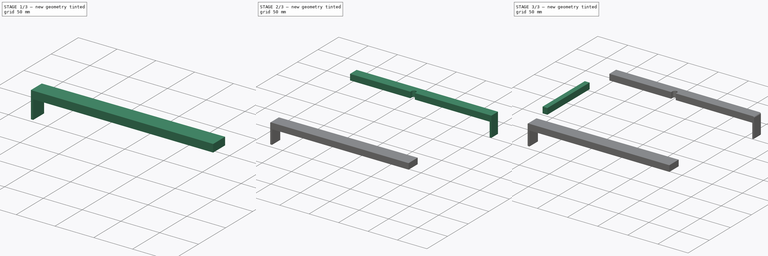
[diagram: build sequence overview — one tinted view per stage of 3, left to right]
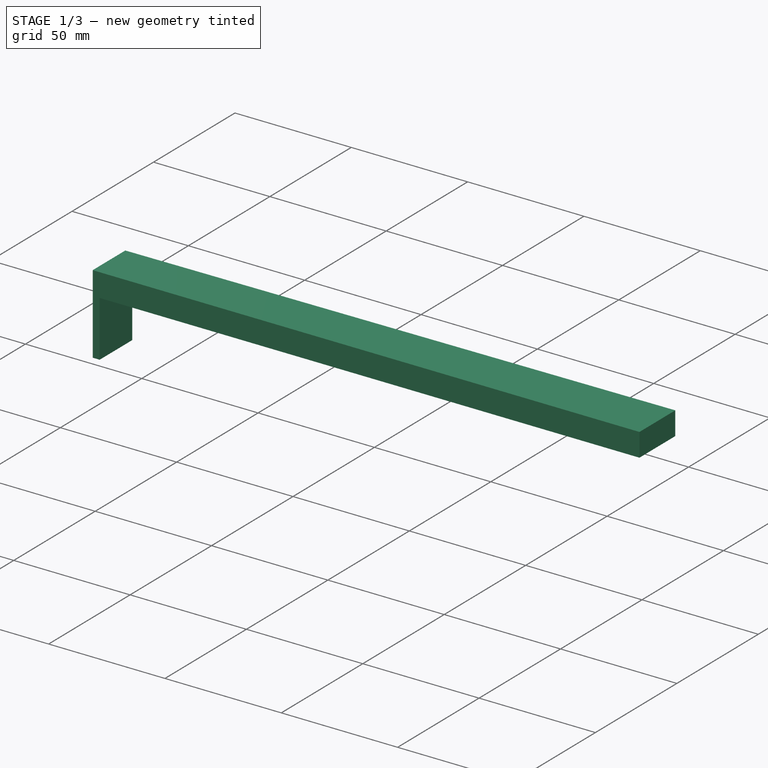
[diagram: stage 1 of 3 — iso view after this stage's code; geometry added in this stage tinted green]
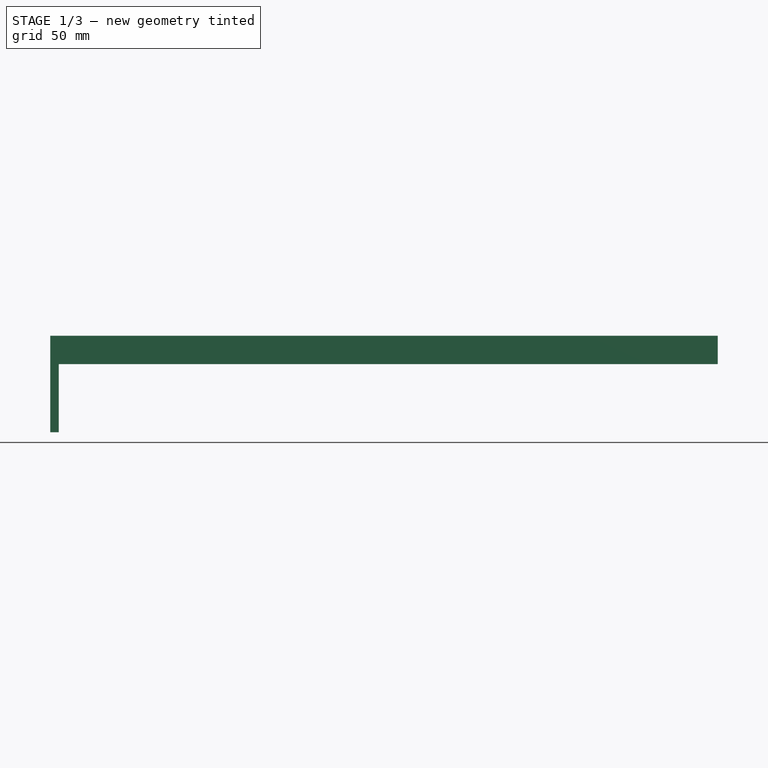
[diagram: stage 1 of 3 — front view after this stage's code; geometry added in this stage tinted green]
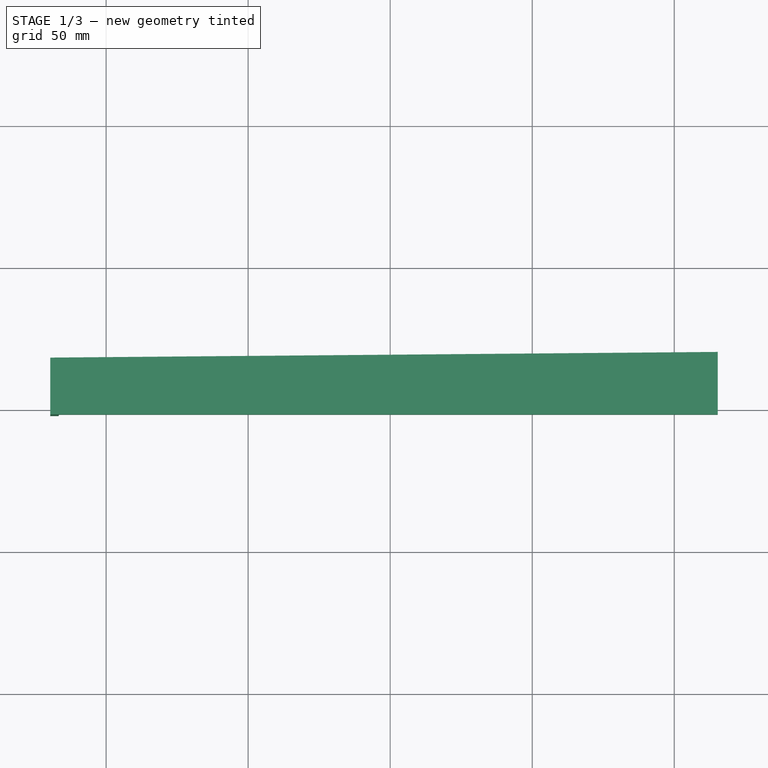
[diagram: stage 1 of 3 — top view after this stage's code; geometry added in this stage tinted green]
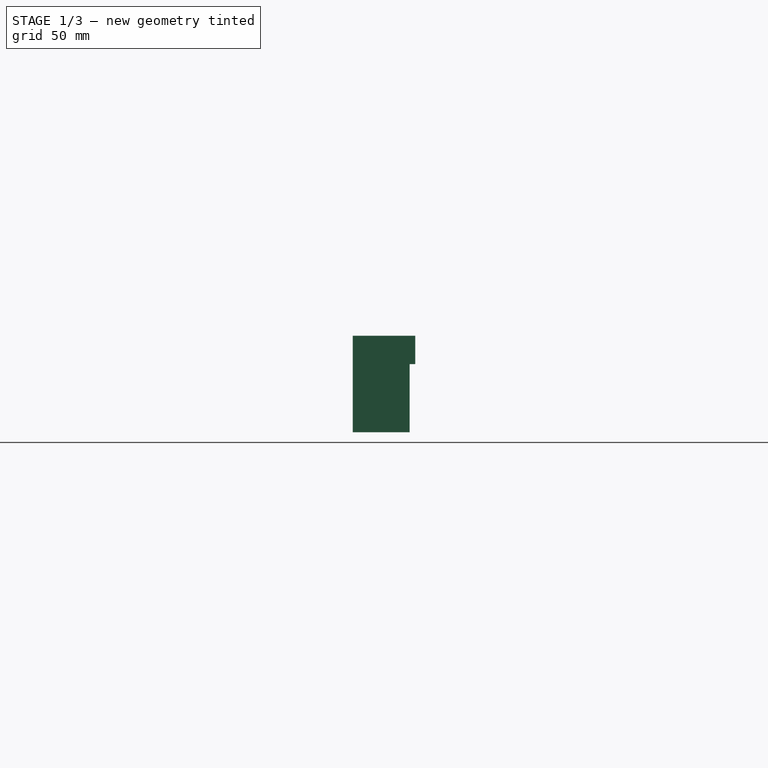
[diagram: stage 1 of 3 — right view after this stage's code; geometry added in this stage tinted green]
FCSTD DOCUMENT  (FreeCAD 0.20R29177 +426 (Git))
Label: 宜家书桌-美缝条
License: All rights reserved
LicenseURL: http://en.wikipedia.org/wiki/All_rights_reserved
objects: Sketcher::SketchObject×5, PartDesign::Pad×5, PartDesign::Body×3, App::Part×3, PartDesign::Fillet×2
note: 22 computed .brp shape members not serialized (recipe doc carries the construction recipe); baked Part::Feature solids carry a one-line shape summary decoded from their .brp

FEATURE [PartDesign::Body] Body
  Group = -> [Sketch,Pad,Sketch001,Pad001,Fillet]
  Origin = -> Origin001
  Tip = -> Fillet
FEATURE [App::Part] Part  label="右侧"
  Group = -> [Body]
  Origin = -> Origin
FEATURE [Sketcher::SketchObject] Sketch003
  FullyConstrained = true
  MapMode = 5
  Support = -> [XY_Plane005]
  sketch-geometry (4):
    g0: LineSegment StartX=-119.68 StartY=-182.01 StartZ=0 EndX=115.32 EndY=-180.01 EndZ=0
    g1: LineSegment StartX=115.32 StartY=-180.01 StartZ=0 EndX=115.32 EndY=-202.01 EndZ=0
    g2: LineSegment StartX=-119.68 StartY=-202.01 StartZ=0 EndX=-119.68 EndY=-182.01 EndZ=0
    g3: LineSegment StartX=-119.68 StartY=-202.01 StartZ=0 EndX=115.32 EndY=-202.01 EndZ=0
  constraints (12):
    c: Coincident(g0,g1)
    c: Coincident(g2,g0)
    c: Vertical(g2)
    c: Vertical(g1)
    c: DistanceY(g1,g1) = 22
    c: DistanceY(g2,g2) = 20
    c: Coincident(g3,g2)
    c: Coincident(g3,g1)
    c: Horizontal(g3)
    c: DistanceX(g3,g3) = 235
    c: DistanceX(g-2,g2) = -119.68
    c: DistanceY(g-1,g0) = -180.01
FEATURE [PartDesign::Pad] Pad003
  Direction = (0,0,1)
  Length = 10
  Length2 = 10
  Profile = -> Sketch003
  ReferenceAxis = -> Sketch003 [N_Axis]
  Type = 0
FEATURE [Sketcher::SketchObject] Sketch004
  ExternalGeometry = -> [Pad003]
  FullyConstrained = true
  MapMode = 5
  Placement = pos=(0,0,0) rot=(1,0,0;3.14159rad)
  Support = -> [Pad003]
  sketch-geometry (4):
    g0: LineSegment StartX=-119.68 StartY=202.01 StartZ=0 EndX=-116.68 EndY=202.01 EndZ=0
    g1: LineSegment StartX=-116.68 StartY=202.01 StartZ=0 EndX=-116.68 EndY=181.984 EndZ=0
    g2: LineSegment StartX=-116.68 StartY=181.984 StartZ=0 EndX=-119.68 EndY=182.01 EndZ=0
    g3: LineSegment StartX=-119.68 StartY=182.01 StartZ=0 EndX=-119.68 EndY=202.01 EndZ=0
  constraints (11):
    c: Horizontal(g0)
    c: Coincident(g0,g1)
    c: Vertical(g1)
    c: Coincident(g1,g2)
    c: Coincident(g2,g3)
    c: Coincident(g3,g0)
    c: Vertical(g3)
    c: PointOnObject(g1,g-5)
    c: Coincident(g2,g-5)
    c: PointOnObject(g0,g-3)
    c: DistanceX(g0,g0) = 3
FEATURE [PartDesign::Pad] Pad004
  BaseFeature = -> Pad003
  Direction = (0,0,-1)
  Length = 24
  Length2 = 10
  Profile = -> Sketch004
  ReferenceAxis = -> Sketch004 [N_Axis]
  Type = 0
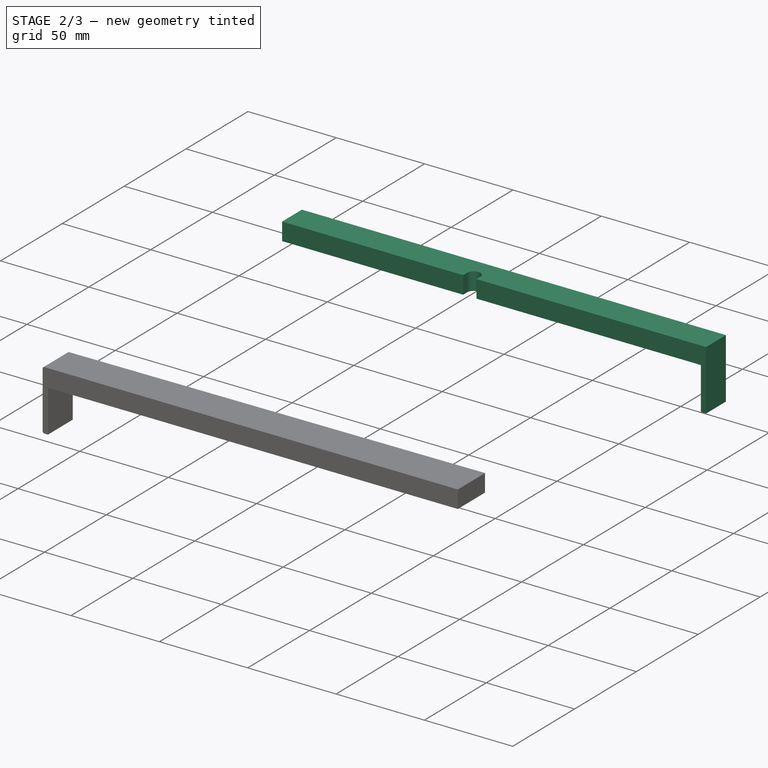
[diagram: stage 2 of 3 — iso view after this stage's code; geometry added in this stage tinted green]
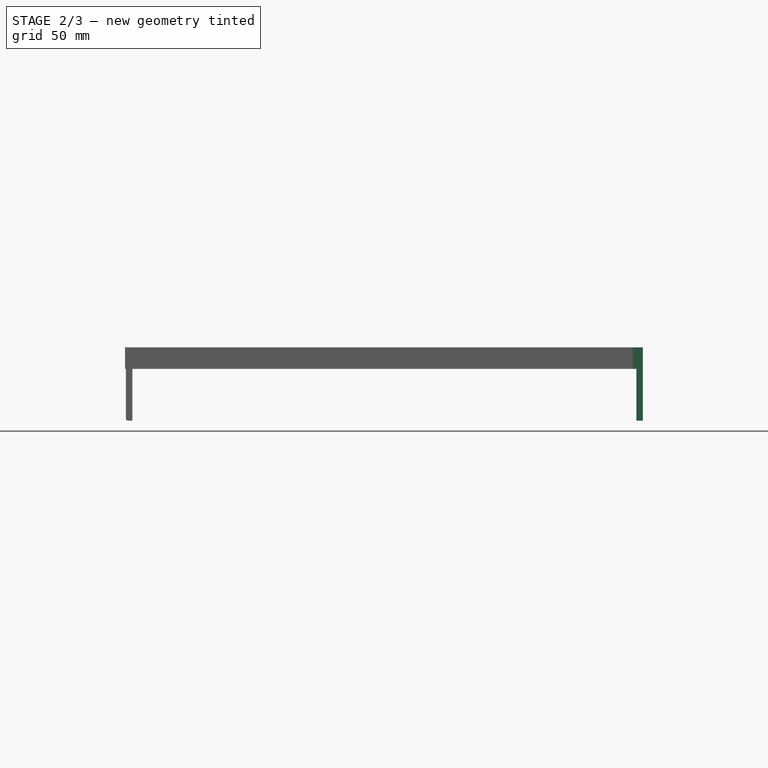
[diagram: stage 2 of 3 — front view after this stage's code; geometry added in this stage tinted green]
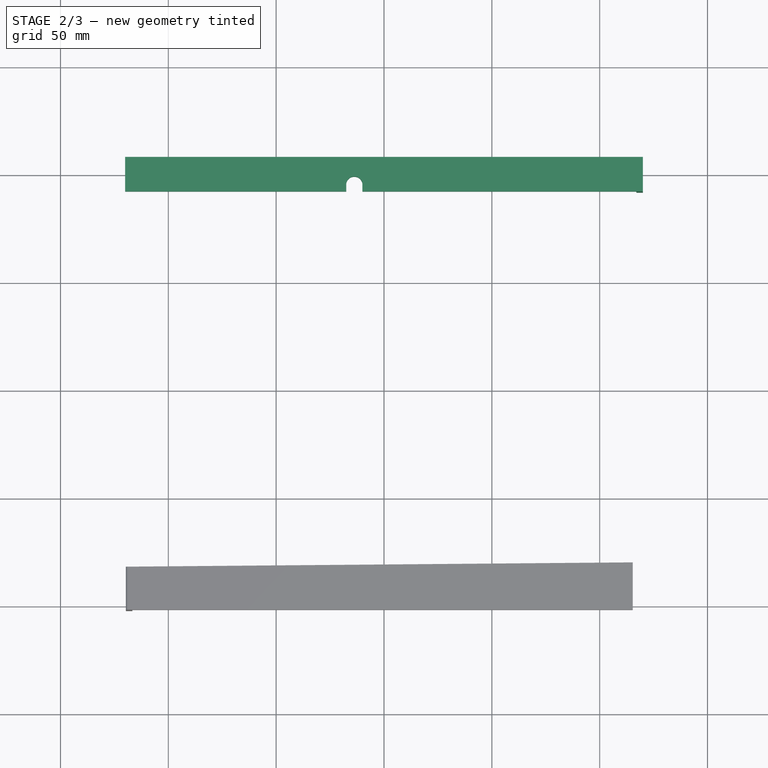
[diagram: stage 2 of 3 — top view after this stage's code; geometry added in this stage tinted green]
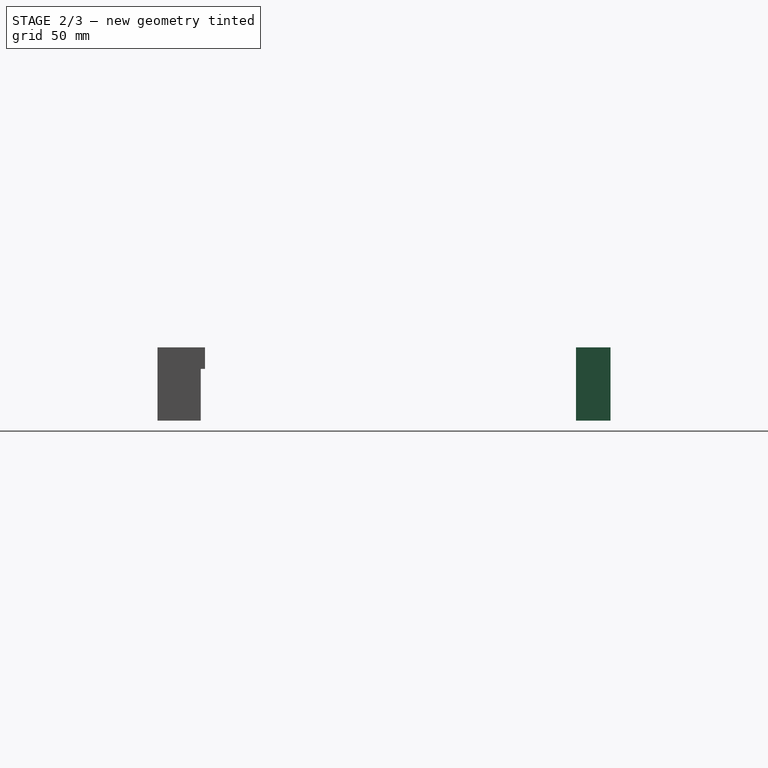
[diagram: stage 2 of 3 — right view after this stage's code; geometry added in this stage tinted green]
FEATURE [Sketcher::SketchObject] Sketch
  FullyConstrained = true
  MapMode = 5
  Support = -> [XY_Plane001]
  sketch-geometry (8):
    g0: LineSegment StartX=-120 StartY=8 StartZ=0 EndX=120 EndY=8 EndZ=0
    g1: LineSegment StartX=120 StartY=8 StartZ=0 EndX=120 EndY=-8 EndZ=0
    g2: LineSegment StartX=-120 StartY=-8 StartZ=0 EndX=-120 EndY=8 EndZ=0
    g3: LineSegment StartX=120 StartY=-8 StartZ=0 EndX=-10 EndY=-8 EndZ=0
    g4: LineSegment StartX=-120 StartY=-8 StartZ=0 EndX=-17.5 EndY=-8 EndZ=0
    g5: ArcOfCircle CenterX=-13.75 CenterY=-4.91441 CenterZ=0 NormalX=0 NormalY=0 NormalZ=1 AngleXU=0 Radius=3.8 StartAngle=0.1624 EndAngle=2.97919
    g6: LineSegment StartX=-17.5 StartY=-4.3 StartZ=0 EndX=-17.5 EndY=-8 EndZ=0
    g7: LineSegment StartX=-10 StartY=-4.3 StartZ=0 EndX=-10 EndY=-8 EndZ=0
  constraints (24):
    c: Coincident(g0,g1)
    c: Coincident(g2,g0)
    c: Horizontal(g0)
    c: Vertical(g1)
    c: Vertical(g2)
    c: Symmetric(g0,g1,g-1)
    c: DistanceX(g2,g1) = 240
    c: DistanceY(g2,g2) = 16
    c: Coincident(g3,g1)
    c: Horizontal(g3)
    c: Coincident(g4,g2)
    c: Horizontal(g4)
    c: DistanceX(g3,g3) = 130
    c: Horizontal(g4,g3)
    c: Horizontal(g5,g5)
    c: Coincident(g6,g5)
    c: Coincident(g6,g4)
    c: Vertical(g6)
    c: Coincident(g7,g5)
    c: Coincident(g7,g3)
    c: Vertical(g7)
    c: Radius(g5) = 3.8
    c: Distance(g4,g3) = 7.5
    c: DistanceY(g6,g6) = 3.7
FEATURE [PartDesign::Pad] Pad
  Direction = (0,0,1)
  Length = 10
  Length2 = 10
  Profile = -> Sketch
  ReferenceAxis = -> Sketch [N_Axis]
  Type = 0
FEATURE [Sketcher::SketchObject] Sketch001
  ExternalGeometry = -> [Sketch]
  FullyConstrained = true
  MapMode = 5
  Placement = pos=(0,0,0) rot=(1,0,0;3.14159rad)
  Support = -> [Pad]
  sketch-geometry (4):
    g0: LineSegment StartX=117 StartY=8 StartZ=0 EndX=120 EndY=8 EndZ=0
    g1: LineSegment StartX=120 StartY=8 StartZ=0 EndX=120 EndY=-8 EndZ=0
    g2: LineSegment StartX=120 StartY=-8 StartZ=0 EndX=117 EndY=-8 EndZ=0
    g3: LineSegment StartX=117 StartY=-8 StartZ=0 EndX=117 EndY=8 EndZ=0
  constraints (11):
    c: Coincident(g0,g1)
    c: Coincident(g1,g2)
    c: Coincident(g2,g3)
    c: Coincident(g3,g0)
    c: Horizontal(g0)
    c: Horizontal(g2)
    c: Vertical(g1)
    c: Vertical(g3)
    c: Coincident(g1,g-5)
    c: PointOnObject(g0,g-3)
    c: DistanceX(g0,g0) = 3
FEATURE [PartDesign::Pad] Pad001
  BaseFeature = -> Pad
  Direction = (0,0,-1)
  Length = 24
  Length2 = 10
  Profile = -> Sketch001
  ReferenceAxis = -> Sketch001 [N_Axis]
  Type = 0
FEATURE [PartDesign::Fillet] Fillet001
  Base = -> Pad004 [Edge8,Edge20]
  BaseFeature = -> Pad004
  Radius = 1
  SupportTransform = false
  UseAllEdges = false
FEATURE [PartDesign::Body] Body002
  Group = -> [Sketch003,Pad003,Sketch004,Pad004,Fillet001]
  Origin = -> Origin005
  Tip = -> Fillet001
FEATURE [App::Part] Part002  label="左侧"
  Group = -> [Body002]
  Origin = -> Origin004
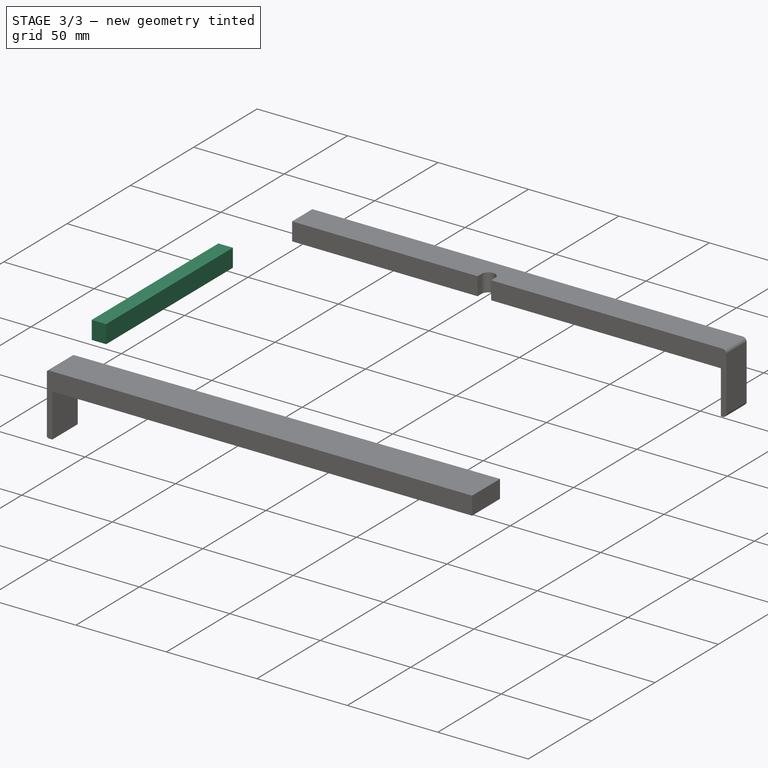
[diagram: stage 3 of 3 — iso view after this stage's code; geometry added in this stage tinted green]
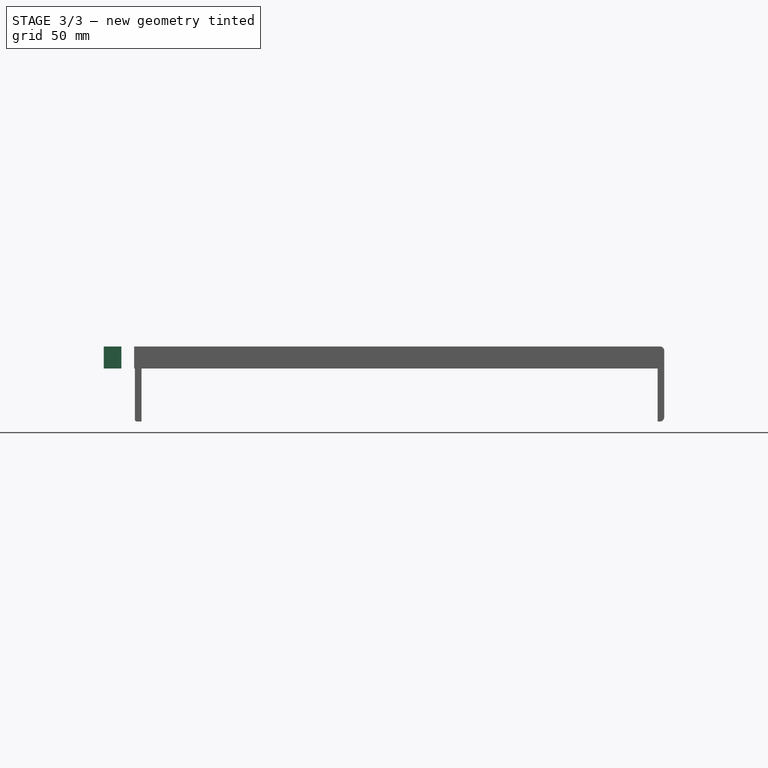
[diagram: stage 3 of 3 — front view after this stage's code; geometry added in this stage tinted green]
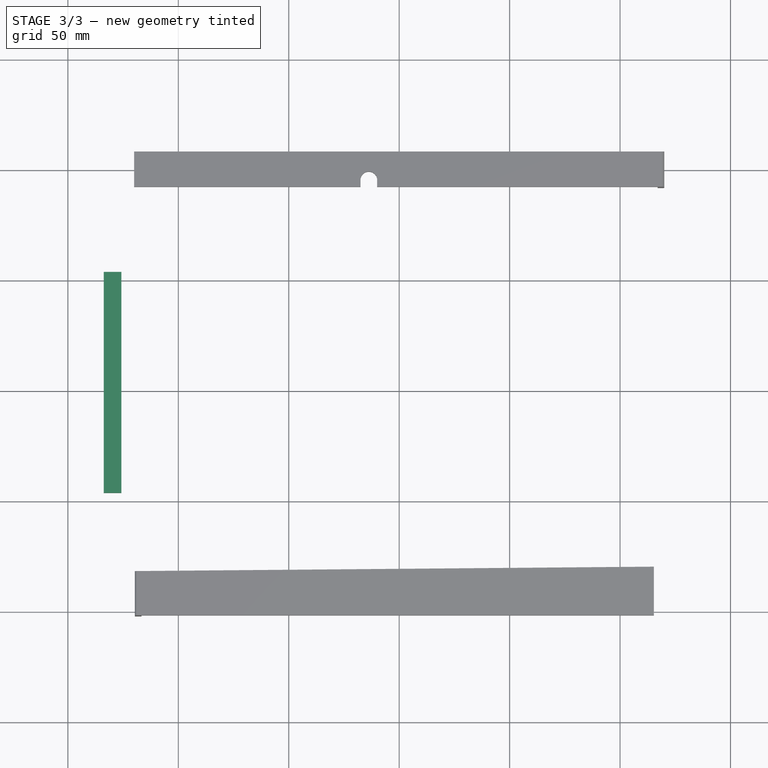
[diagram: stage 3 of 3 — top view after this stage's code; geometry added in this stage tinted green]
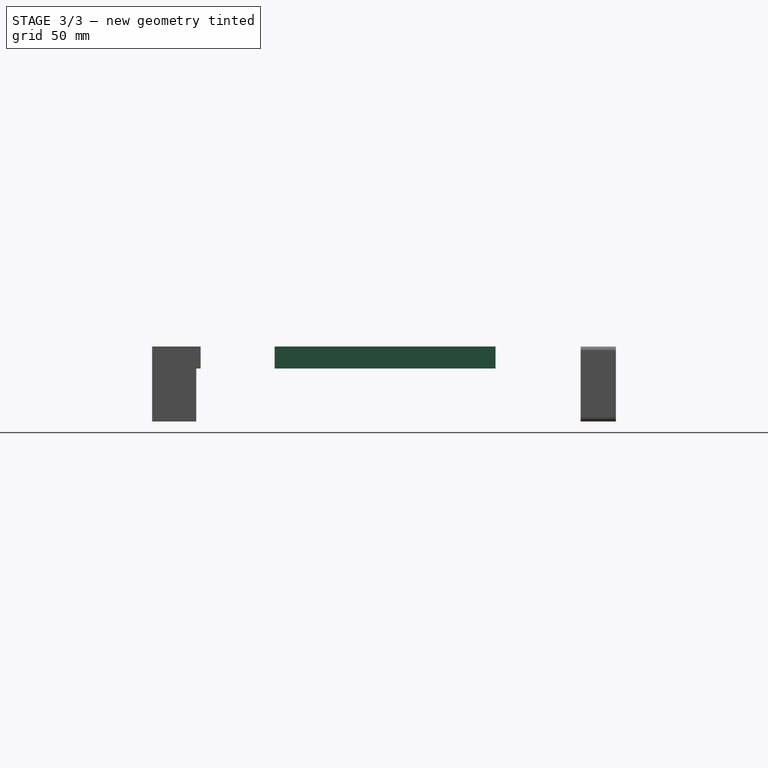
[diagram: stage 3 of 3 — right view after this stage's code; geometry added in this stage tinted green]
FEATURE [Sketcher::SketchObject] Sketch002
  FullyConstrained = false
  MapMode = 5
  Support = -> [XY_Plane003]
  sketch-geometry (4):
    g0: LineSegment StartX=-133.774 StartY=-46.5204 StartZ=0 EndX=-125.774 EndY=-46.5204 EndZ=0
    g1: LineSegment StartX=-125.774 StartY=-46.5204 StartZ=0 EndX=-125.774 EndY=-146.52 EndZ=0
    g2: LineSegment StartX=-125.774 StartY=-146.52 StartZ=0 EndX=-133.774 EndY=-146.52 EndZ=0
    g3: LineSegment StartX=-133.774 StartY=-146.52 StartZ=0 EndX=-133.774 EndY=-46.5204 EndZ=0
  constraints (10):
    c: Coincident(g0,g1)
    c: Coincident(g1,g2)
    c: Coincident(g2,g3)
    c: Coincident(g3,g0)
    c: Horizontal(g0)
    c: Horizontal(g2)
    c: Vertical(g1)
    c: Vertical(g3)
    c: DistanceX(g2,g2) = 8
    c: DistanceY(g1,g1) = 100
FEATURE [PartDesign::Pad] Pad002
  Direction = (0,0,1)
  Length = 10
  Length2 = 10
  Profile = -> Sketch002
  ReferenceAxis = -> Sketch002 [N_Axis]
  Type = 0
FEATURE [PartDesign::Body] Body001
  Group = -> [Sketch002,Pad002]
  Origin = -> Origin003
  Tip = -> Pad002
FEATURE [App::Part] Part001  label="前方"
  Group = -> [Body001]
  Origin = -> Origin002
FEATURE [PartDesign::Fillet] Fillet
  Base = -> Pad001 [Edge19,Edge35]
  BaseFeature = -> Pad001
  Radius = 2
  SupportTransform = false
  UseAllEdges = false
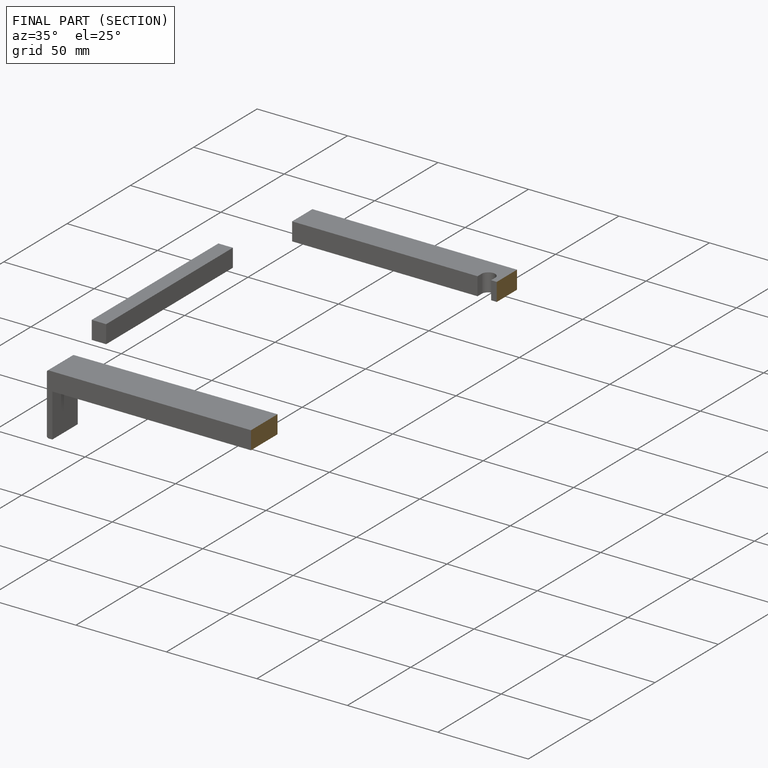
[diagram: finished part — half-section view (interior)]
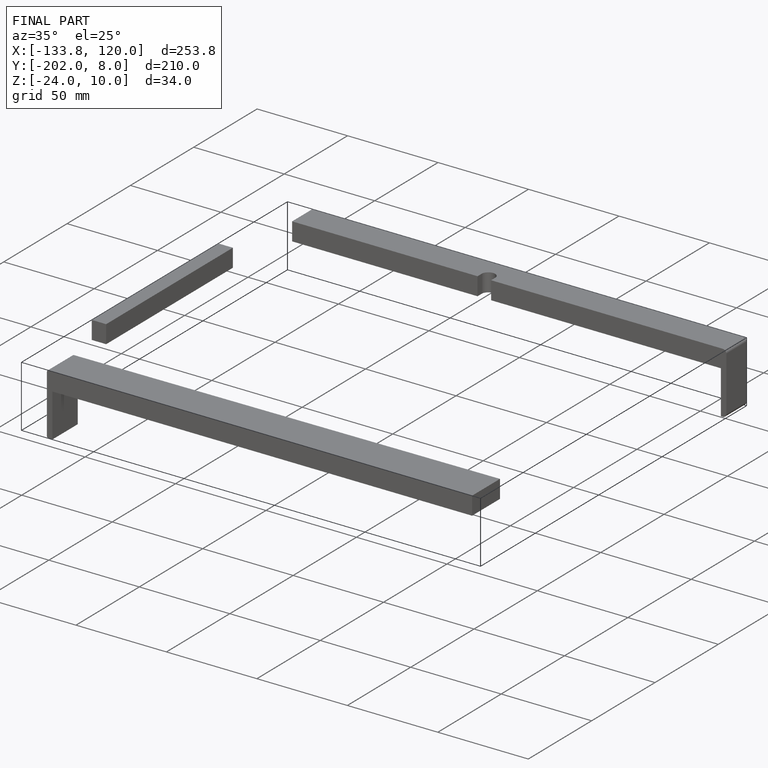
[diagram: finished part — iso view with bounding-box wireframe]
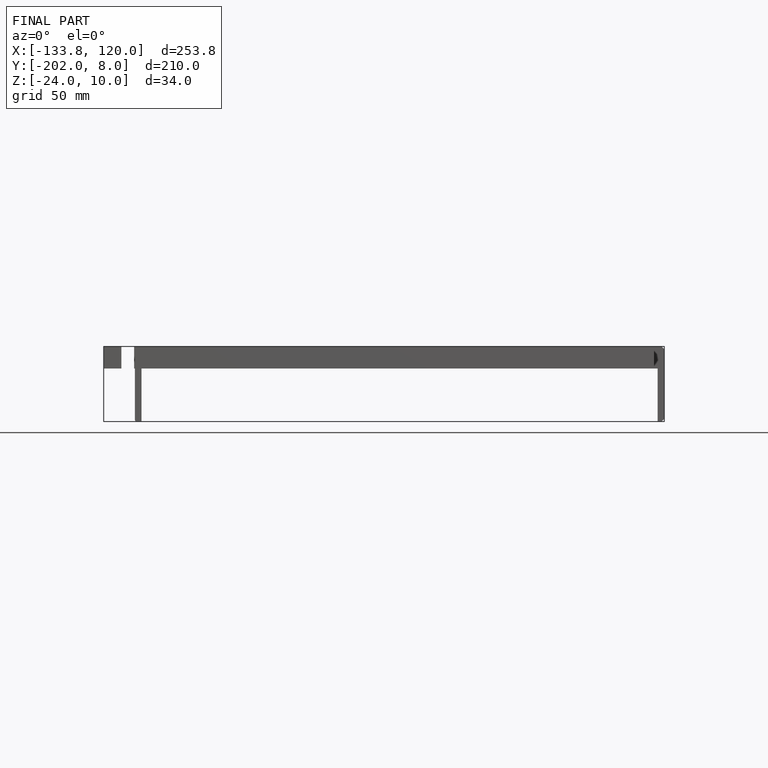
[diagram: finished part — front view with bounding-box wireframe]
